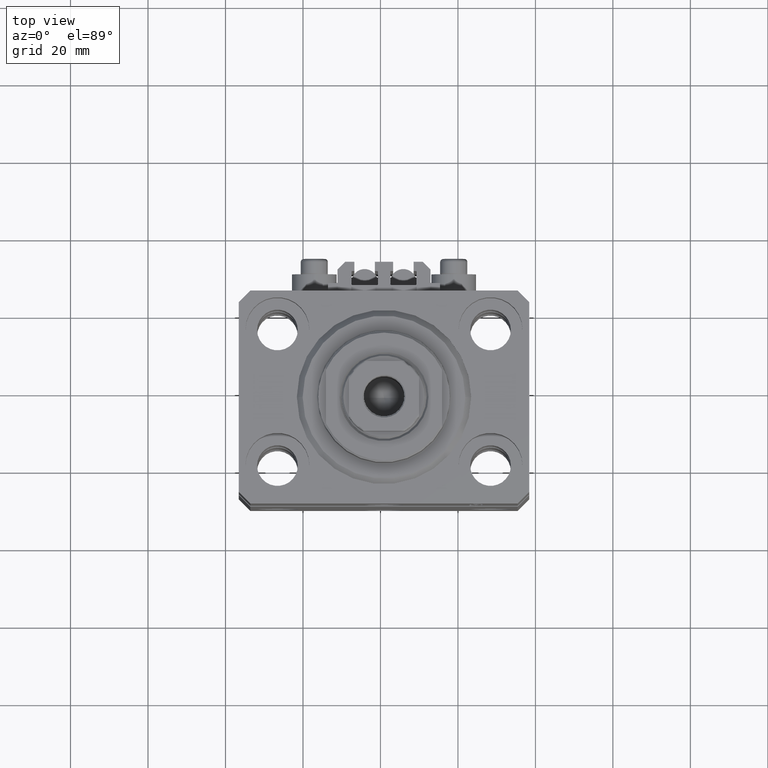
[diagram: clean part render]
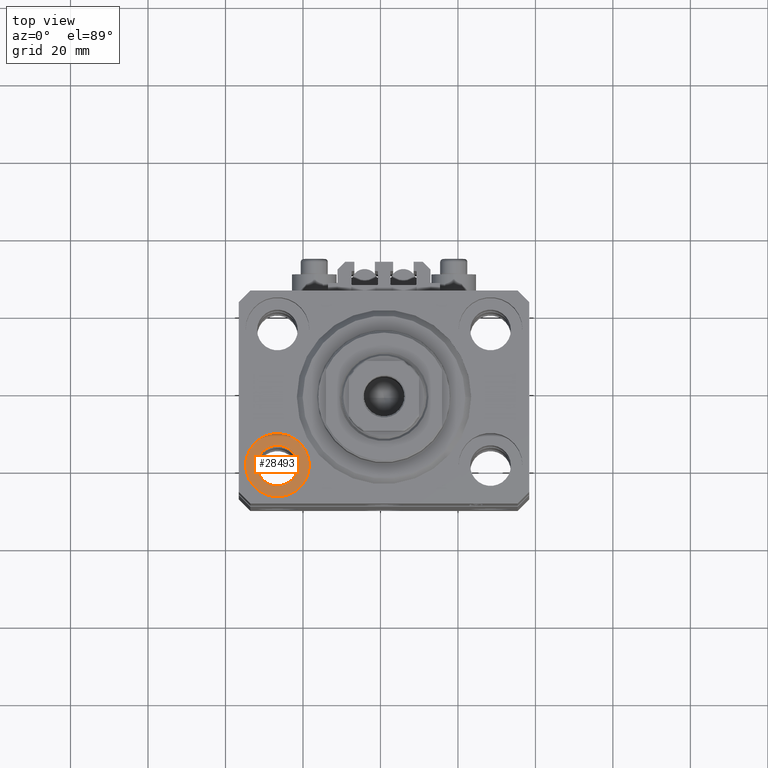
[diagram: same view with one face highlighted and labeled with its STEP entity id]
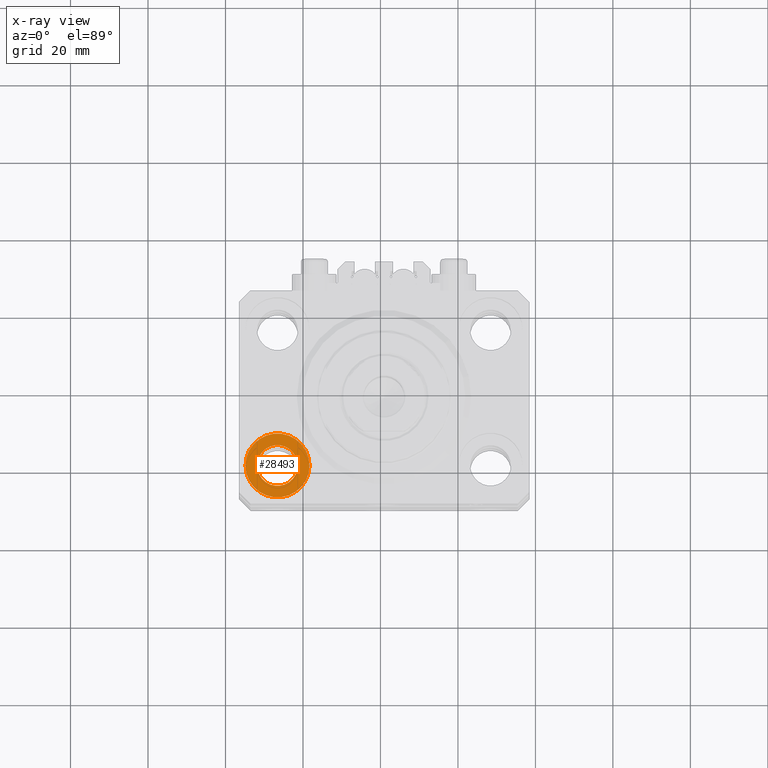
[diagram: x-ray of the same camera — body ghosted, the highlighted face saturated]
A machine part, top view. The second image highlights one B-rep face of the part: STEP entity #28493.
The next image is the same camera in x-ray: the body ghosted, the highlighted face saturated — about 0% of this face is hidden behind the body in this view.
In plain terms, the highlighted planar face has unit normal (0, 0, 1).
Its self-contained STEP definition (entity closure, byte-faithful):
#223 = ORIENTED_EDGE ( 'NONE', *, *, #33777, .F. ) ;
#1336 = PLANE ( 'NONE',  #44037 ) ;
#1453 = AXIS2_PLACEMENT_3D ( 'NONE', #10873, #17923, #32802 ) ;
#1575 = FACE_OUTER_BOUND ( 'NONE', #43989, .T. ) ;
#2570 = DIRECTION ( 'NONE',  ( 0.000000000000000000, 0.000000000000000000, 1.000000000000000000 ) ) ;
#7166 = EDGE_LOOP ( 'NONE', ( #45014, #223 ) ) ;
#7597 = ORIENTED_EDGE ( 'NONE', *, *, #36299, .T. ) ;
#7716 = CIRCLE ( 'NONE', #1453, 5.250000000000000888 ) ;
#7744 = DIRECTION ( 'NONE',  ( 0.000000000000000000, 0.000000000000000000, 1.000000000000000000 ) ) ;
#9479 = DIRECTION ( 'NONE',  ( 1.000000000000000000, 0.000000000000000000, 0.000000000000000000 ) ) ;
#9610 = DIRECTION ( 'NONE',  ( 0.000000000000000000, 0.000000000000000000, 1.000000000000000000 ) ) ;
#9707 = DIRECTION ( 'NONE',  ( 0.000000000000000000, 0.000000000000000000, 1.000000000000000000 ) ) ;
#9880 = CARTESIAN_POINT ( 'NONE',  ( -27.50000000000000355, -17.50000000000000000, -11.00000000000000000 ) ) ;
#10873 = CARTESIAN_POINT ( 'NONE',  ( -27.50000000000000355, -17.50000000000000000, -11.00000000000000000 ) ) ;
#12779 = DIRECTION ( 'NONE',  ( 1.000000000000000000, 0.000000000000000000, -0.000000000000000000 ) ) ;
#13296 = DIRECTION ( 'NONE',  ( 1.000000000000000000, 0.000000000000000000, 0.000000000000000000 ) ) ;
#13387 = CIRCLE ( 'NONE', #46840, 8.250000000000000000 ) ;
#14012 = CIRCLE ( 'NONE', #45144, 5.250000000000000888 ) ;
#16300 = VERTEX_POINT ( 'NONE', #34604 ) ;
#16901 = FACE_BOUND ( 'NONE', #7166, .T. ) ;
#17006 = VERTEX_POINT ( 'NONE', #19024 ) ;
#17081 = CIRCLE ( 'NONE', #18675, 8.250000000000000000 ) ;
#17923 = DIRECTION ( 'NONE',  ( 0.000000000000000000, 0.000000000000000000, 1.000000000000000000 ) ) ;
#18675 = AXIS2_PLACEMENT_3D ( 'NONE', #26000, #7744, #44254 ) ;
#18996 = CARTESIAN_POINT ( 'NONE',  ( -35.75000000000000711, -17.50000000000000000, -11.00000000000000000 ) ) ;
#19003 = EDGE_CURVE ( 'NONE', #16300, #17006, #14012, .T. ) ;
#19024 = CARTESIAN_POINT ( 'NONE',  ( -32.75000000000000000, -17.50000000000000000, -11.00000000000000000 ) ) ;
#21620 = ORIENTED_EDGE ( 'NONE', *, *, #22992, .T. ) ;
#22992 = EDGE_CURVE ( 'NONE', #39807, #36885, #13387, .T. ) ;
#26000 = CARTESIAN_POINT ( 'NONE',  ( -27.50000000000000355, -17.50000000000000000, -11.00000000000000000 ) ) ;
#28493 = ADVANCED_FACE ( 'NONE', ( #16901, #1575 ), #1336, .T. ) ;
#31070 = CARTESIAN_POINT ( 'NONE',  ( -27.50000000000000355, -17.50000000000000000, -11.00000000000000000 ) ) ;
#32802 = DIRECTION ( 'NONE',  ( 1.000000000000000000, 0.000000000000000000, 0.000000000000000000 ) ) ;
#33777 = EDGE_CURVE ( 'NONE', #17006, #16300, #7716, .T. ) ;
#34604 = CARTESIAN_POINT ( 'NONE',  ( -22.25000000000000355, -17.50000000000000000, -11.00000000000000000 ) ) ;
#36299 = EDGE_CURVE ( 'NONE', #36885, #39807, #17081, .T. ) ;
#36885 = VERTEX_POINT ( 'NONE', #18996 ) ;
#39807 = VERTEX_POINT ( 'NONE', #48121 ) ;
#43989 = EDGE_LOOP ( 'NONE', ( #21620, #7597 ) ) ;
#44037 = AXIS2_PLACEMENT_3D ( 'NONE', #31070, #9610, #12779 ) ;
#44254 = DIRECTION ( 'NONE',  ( 1.000000000000000000, 0.000000000000000000, 0.000000000000000000 ) ) ;
#45014 = ORIENTED_EDGE ( 'NONE', *, *, #19003, .F. ) ;
#45144 = AXIS2_PLACEMENT_3D ( 'NONE', #46483, #9707, #9479 ) ;
#46483 = CARTESIAN_POINT ( 'NONE',  ( -27.50000000000000355, -17.50000000000000000, -11.00000000000000000 ) ) ;
#46840 = AXIS2_PLACEMENT_3D ( 'NONE', #9880, #2570, #13296 ) ;
#48121 = CARTESIAN_POINT ( 'NONE',  ( -19.25000000000000355, -17.50000000000000000, -11.00000000000000000 ) ) ;